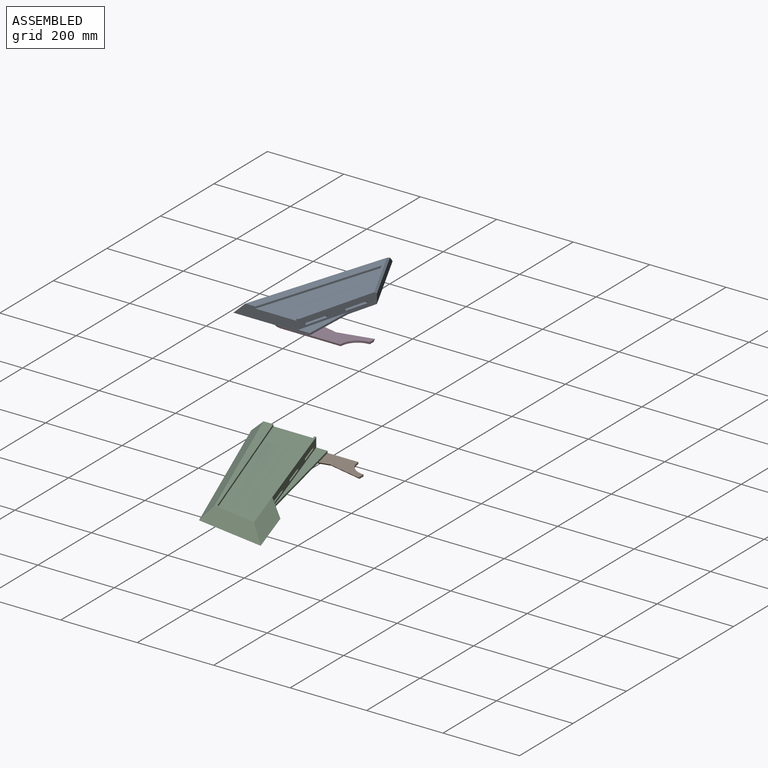
[diagram: assembled view]
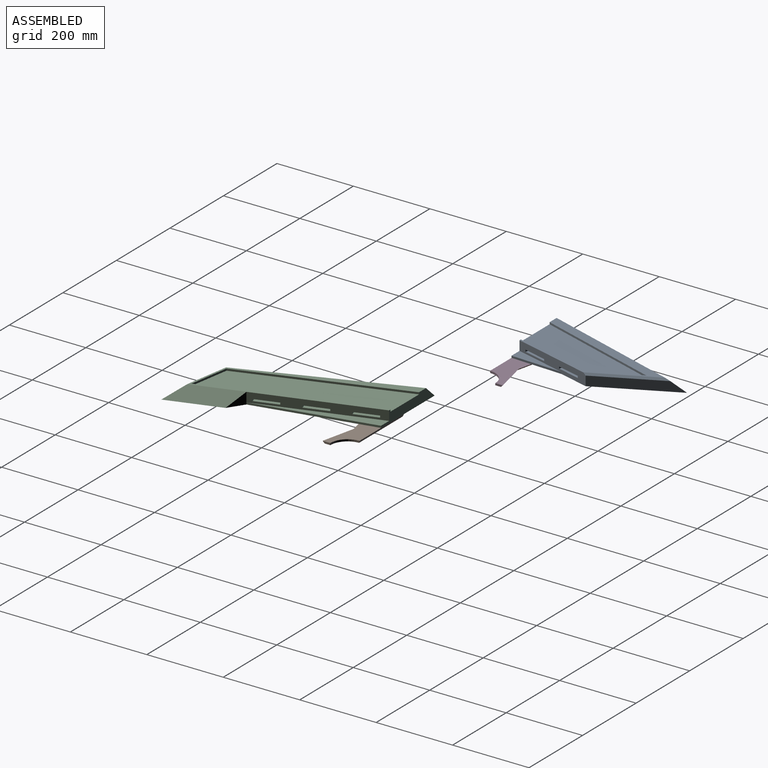
[diagram: assembled view, second angle]
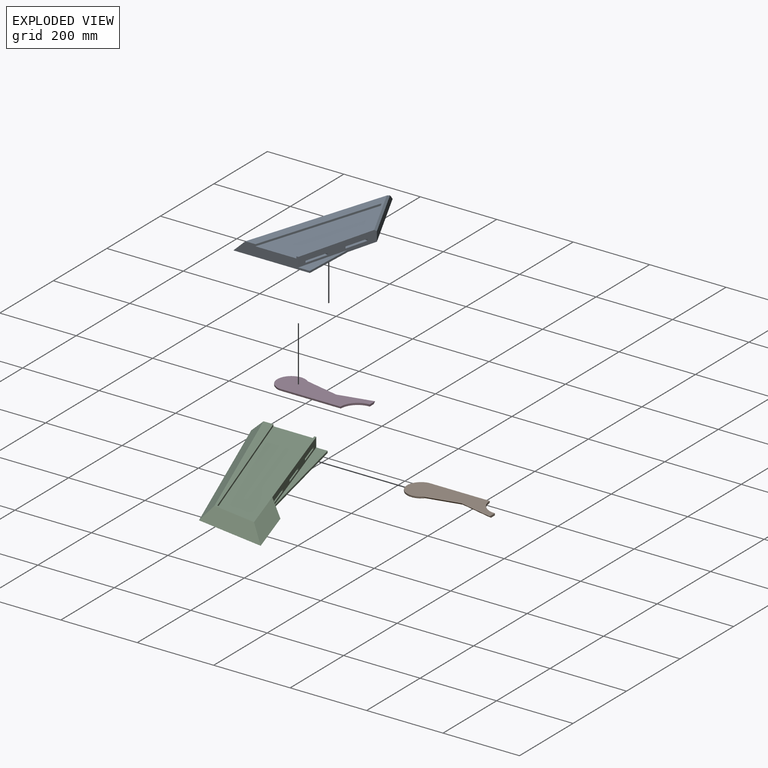
[diagram: exploded view]
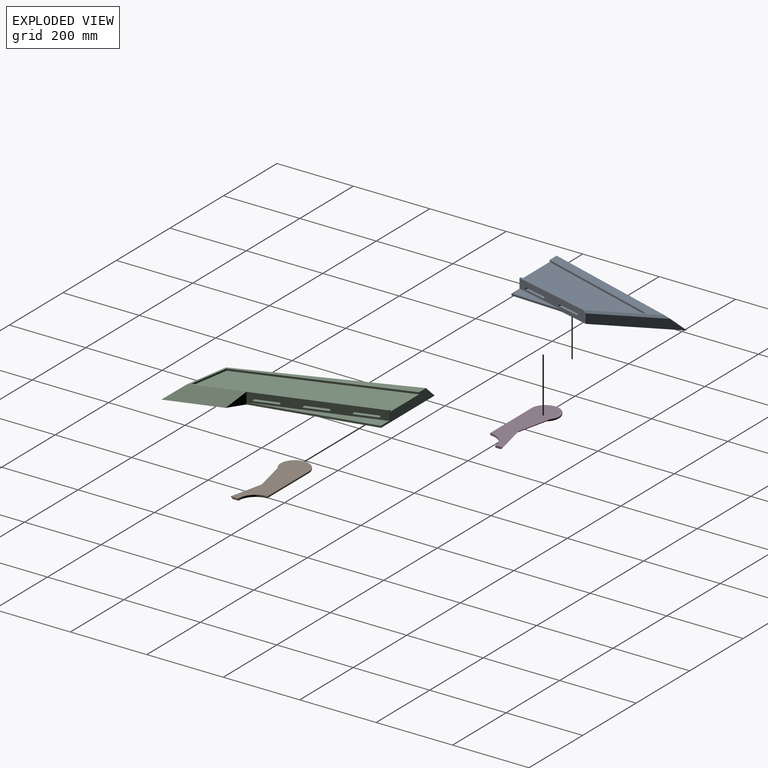
[diagram: exploded view, second angle]
ASSEMBLY  parts=4 mates=2
PART A: 23 faces, bbox 226.7x410x30 mm
  f0: plane 200x30mm, normal (0,-1,0), area 4242.3mm2, adj f1,f2,f4,f5,f6,f8,f9,f11
  f1: plane 364.15x193.26mm, normal (0,0,1), area 10869.9mm2, adj f0,f2,f5,f6,f7,f9,f10
  f2: plane 212.57x56.68mm, normal (0.97,-0.26,0), area 5267.4mm2, adj f0,f1,f3,f4,f10,f11,f12,f13
  f3: plane 197.43x97.07mm, normal (0.9,0.44,0), area 5047.9mm2, adj f2,f4,f9,f10
  f4: plane 410x226.68mm, normal (0,0,-1), area 52773.1mm2, adj f0,f2,f3,f9,f11
  f5: plane 324.8x102.68mm, normal (0.95,-0.3,0), area 1703.2mm2, adj f0,f1,f7,f8
  f6: plane 204.7x54.58mm, normal (-0.97,0.26,0), area 1059.3mm2, adj f0,f1,f7,f8
  f7: plane 120.1x59.05mm, normal (-0.9,-0.44,0), area 669.1mm2, adj f1,f5,f6,f8
  f8: plane 324.8x161.73mm, normal (0,0,1), area 26721.1mm2, adj f0,f5,f6,f7
  f9: plane 410x146.58mm, normal (-0.67,0.21,0.71), area 17351.2mm2, adj f0,f1,f3,f4,f10
  f10: plane 172.32x81.11mm, normal (0.63,0.31,0.71), area 1276.1mm2, adj f1,f2,f3,f9
  f11: plane 134.04x5.74mm, normal (1,-0.04,0), area 670.8mm2, adj f0,f2,f4,f12
  f12: plane 134.04x35.74mm, normal (0,0,1), area 2010.6mm2, adj f0,f2,f11
  f13: plane 93.27x80.52mm, normal (0,0,1), area 4960mm2, adj f2,f14,f16,f17
  f14: plane 77.3x20.61mm, normal (-0.26,-0.97,0), area 400mm2, adj f2,f13,f15,f17
  f15: plane 93.27x80.52mm, normal (0,0,-1), area 4960mm2, adj f2,f14,f16,f17
  f16: plane 77.3x20.61mm, normal (0.26,0.97,0), area 400mm2, adj f2,f13,f15,f17
  f17: plane 59.91x15.97mm, normal (0.97,-0.26,0), area 310mm2, adj f13,f14,f15,f16
  f18: plane 93.27x80.52mm, normal (0,0,1), area 4960mm2, adj f2,f19,f21,f22
  f19: plane 77.3x20.61mm, normal (-0.26,-0.97,0), area 400mm2, adj f2,f18,f20,f22
  f20: plane 93.27x80.52mm, normal (0,0,-1), area 4960mm2, adj f2,f19,f21,f22
  f21: plane 77.3x20.61mm, normal (0.26,0.97,0), area 400mm2, adj f2,f18,f20,f22
  f22: plane 59.91x15.97mm, normal (0.97,-0.26,0), area 310mm2, adj f18,f19,f20,f21
PART B: 10 faces, bbox 239x79.5x5 mm
  f0: cylinder r=36.96mm len=73.42mm, axis (0,0,1), area 415.6mm2, adj f1,f4,f6,f8
  f1: plane 160x3mm, normal (0,1,0), area 480mm2, adj f0,f2,f4,f7
  f2: cylinder r=45mm len=45mm, axis (0,0,1), area 352.6mm2, adj f1,f3,f4,f5,f7
  f3: plane 20x5mm, normal (1,0,0), area 87.2mm2, adj f2,f4,f5,f9
  f4: plane 235.94x73.42mm, normal (0,0,1), area 11867mm2, adj f0,f1,f2,f3,f8,f9
  f5: plane 233.94x69.42mm, normal (0,0,-1), area 10386mm2, adj f2,f3,f6,f7,f8,f9
  f6: torus R=34.96mm, axis (0,0,1), area 438.6mm2, adj f0,f5,f7,f8
  f7: cylinder r=2mm len=160.04mm, axis (-1,0,0), area 502.5mm2, adj f1,f2,f5,f6
  f8: plane 87.75x25.13mm, normal (0.16,-0.69,-0.71), area 613.4mm2, adj f0,f4,f5,f6,f9
  f9: plane 87.75x25.13mm, normal (-0.16,-0.69,-0.71), area 636.4mm2, adj f3,f4,f5,f8
PART C: 29 faces, bbox 352.5x468.3x30 mm
  f0: plane 200x30mm, normal (0,1,0), area 4233mm2, adj f2,f3,f4,f5,f7,f8,f9,f10
  f1: plane 39.96x29.85mm, normal (0.55,0.83,0), area 716.7mm2, adj f2,f4,f5,f8
  f2: plane 304.52x98.31mm, normal (0.95,0.31,0), area 7040.8mm2, adj f0,f1,f5,f9,f14,f15,f16,f17
  f3: plane 430.65x276.7mm, normal (0,0,1), area 9255.4mm2, adj f0,f5,f6,f7,f10,f11,f12
  f4: plane 468.25x352.54mm, normal (0,0,-1), area 79179.6mm2, adj f0,f1,f5,f6,f7,f8
  f5: plane 468.25x182.7mm, normal (0.67,0.22,0.71), area 5938.3mm2, adj f0,f1,f2,f3,f4,f6
  f6: plane 182.54x56.89mm, normal (-0.11,-0.7,0.71), area 6442mm2, adj f3,f4,f5,f7
  f7: plane 438.18x191.77mm, normal (-0.66,-0.26,0.71), area 19330.2mm2, adj f0,f3,f4,f6
  f8: plane 304.52x68.31mm, normal (0.98,0.22,0), area 1560.5mm2, adj f0,f1,f4,f9
  f9: plane 304.52x98.31mm, normal (0,0,1), area 4567.9mm2, adj f0,f2,f8
  f10: plane 407.04x138.45mm, normal (0.95,0.32,0), area 2149.7mm2, adj f0,f3,f11,f13
  f11: plane 105.44x17.37mm, normal (0.16,0.99,0), area 534.3mm2, adj f3,f10,f12,f13
  f12: plane 424.41x137.02mm, normal (-0.95,-0.31,0), area 2229.9mm2, adj f0,f3,f11,f13
  f13: plane 424.41x243.88mm, normal (0,0,1), area 42933.6mm2, adj f0,f10,f11,f12
  f14: plane 95.18x83.58mm, normal (0,0,-1), area 4960mm2, adj f2,f15,f17,f18
  f15: plane 76.13x24.58mm, normal (-0.31,0.95,0), area 388.1mm2, adj f2,f14,f16,f18
  f16: plane 95.18x83.58mm, normal (0,0,1), area 4960mm2, adj f2,f15,f17,f18
  f17: plane 76.13x24.58mm, normal (0.31,-0.95,0), area 388.1mm2, adj f2,f14,f16,f18
  f18: plane 59x19.05mm, normal (0.95,0.31,0), area 300.8mm2, adj f14,f15,f16,f17
  f19: plane 95.18x83.58mm, normal (0,0,1), area 4960mm2, adj f2,f20,f22,f23
  f20: plane 76.13x24.58mm, normal (0.31,-0.95,0), area 400mm2, adj f2,f19,f21,f23
  f21: plane 95.18x83.58mm, normal (0,0,-1), area 4960mm2, adj f2,f20,f22,f23
  f22: plane 76.13x24.58mm, normal (-0.31,0.95,0), area 400mm2, adj f2,f19,f21,f23
  f23: plane 59x19.05mm, normal (0.95,0.31,0), area 310mm2, adj f19,f20,f21,f22
  f24: plane 76.13x24.58mm, normal (-0.31,0.95,0), area 388.1mm2, adj f2,f25,f27,f28
  f25: plane 95.18x83.58mm, normal (0,0,1), area 4960mm2, adj f2,f24,f26,f28
  f26: plane 76.13x24.58mm, normal (0.31,-0.95,0), area 388.1mm2, adj f2,f25,f27,f28
  f27: plane 95.18x83.58mm, normal (0,0,-1), area 4960mm2, adj f2,f24,f26,f28
  f28: plane 59x19.05mm, normal (0.95,0.31,0), area 300.8mm2, adj f24,f25,f26,f27
PART D: 10 faces, bbox 239x79.5x5 mm
  f0: cylinder r=36.96mm len=73.42mm, axis (0,0,1), area 415.6mm2, adj f1,f4,f6,f8
  f1: plane 160x3mm, normal (0,-1,0), area 480mm2, adj f0,f2,f4,f7
  f2: cylinder r=45mm len=45mm, axis (0,0,1), area 352.6mm2, adj f1,f3,f4,f5,f7
  f3: plane 20x5mm, normal (1,0,0), area 87.2mm2, adj f2,f4,f5,f9
  f4: plane 235.94x73.42mm, normal (0,0,1), area 11867mm2, adj f0,f1,f2,f3,f8,f9
  f5: plane 233.94x69.42mm, normal (0,0,-1), area 10386mm2, adj f2,f3,f6,f7,f8,f9
  f6: torus R=34.96mm, axis (0,0,1), area 438.6mm2, adj f0,f5,f7,f8
  f7: cylinder r=2mm len=160.04mm, axis (-1,0,0), area 502.5mm2, adj f1,f2,f5,f6
  f8: plane 87.75x25.13mm, normal (0.16,0.69,-0.71), area 613.4mm2, adj f0,f4,f5,f6,f9
  f9: plane 87.75x25.13mm, normal (-0.16,0.69,-0.71), area 636.4mm2, adj f3,f4,f5,f8
PLACE A t=(-380.21,-212.21,72.38)mm
PLACE B t=(136.83,-369.25,-80.46)mm
PLACE C t=(-113.14,-419.19,-75.46)mm
PLACE D t=(-55.07,-212.14,67.38)mm
MATE fastened C.f4 <-> B.f0  axis (0,0,-1) through (-62.15,-455.72,-75.46)mm
MATE fastened D.f0 <-> A.f4  axis (0,0,1) through (-254.05,-175.68,72.38)mm
